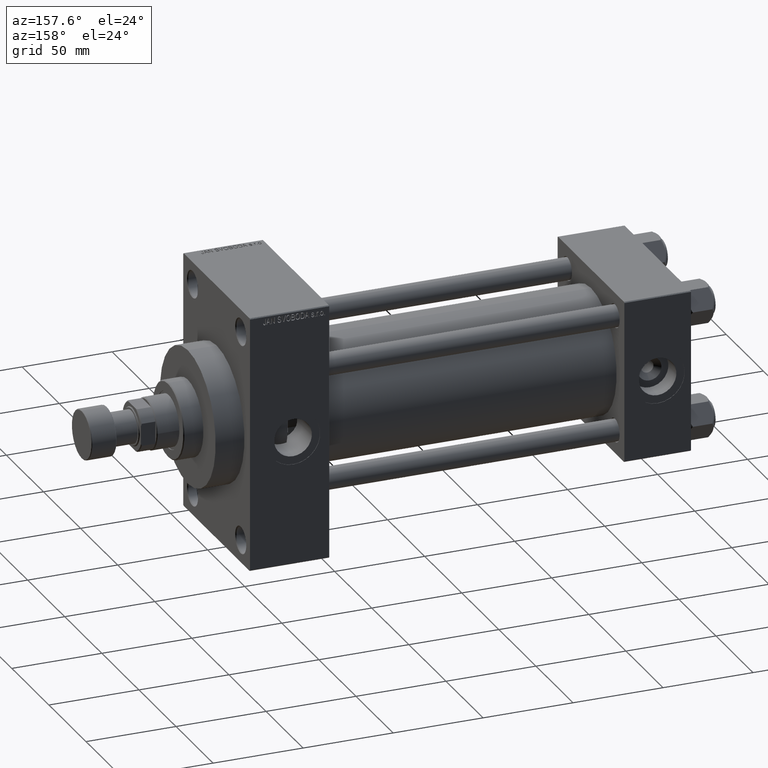
[diagram: clean part render]
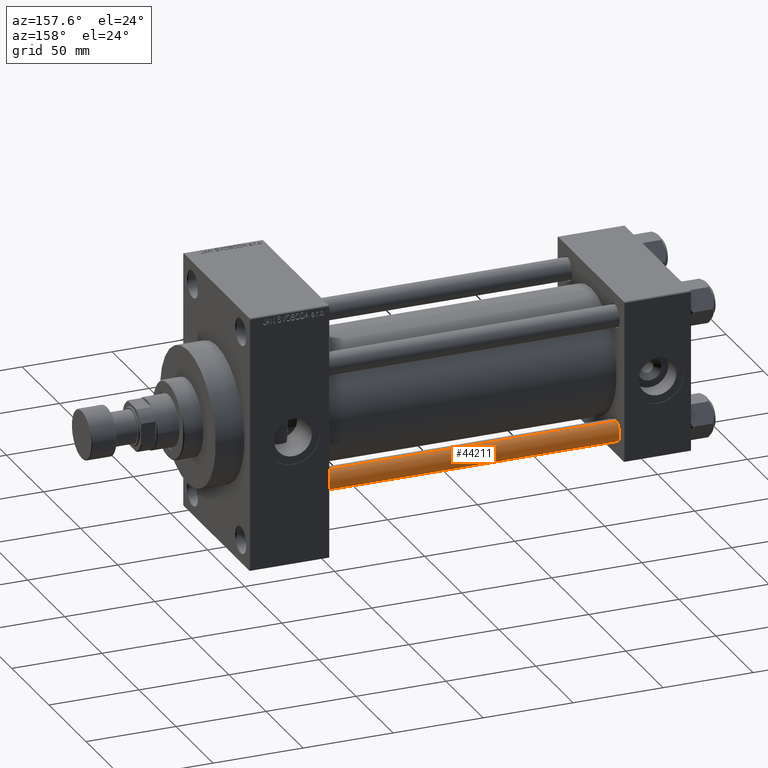
[diagram: same view with one face highlighted and labeled with its STEP entity id]
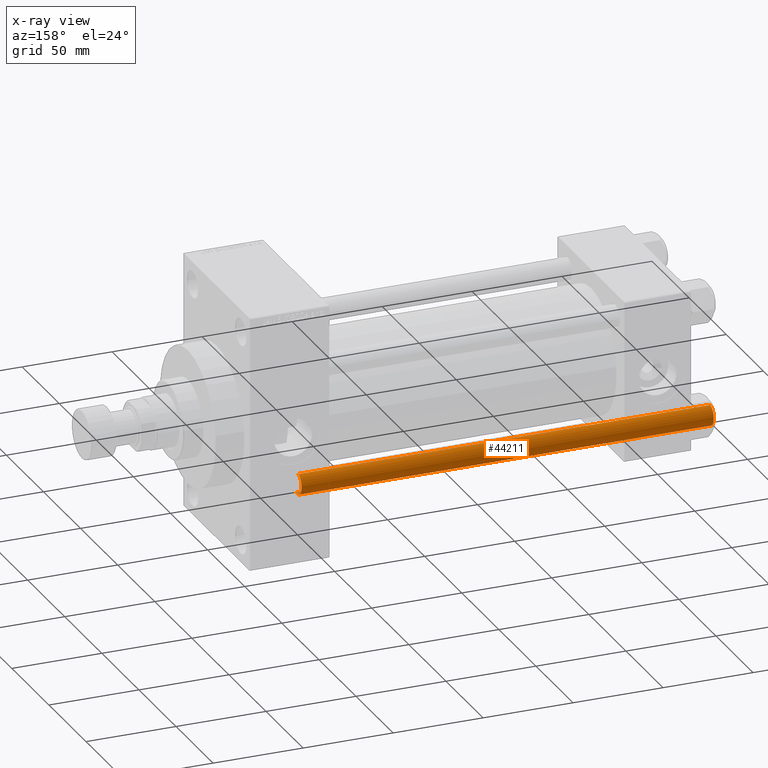
[diagram: x-ray of the same camera — body ghosted, the highlighted face saturated]
A machine part, auxiliary view. The second image highlights one B-rep face of the part: STEP entity #44211.
The next image is the same camera in x-ray: the body ghosted, the highlighted face saturated — about 0% of this face is hidden behind the body in this view.
In plain terms, the highlighted cylindrical surface (edge-blend (fillet) strip) has radius 6 mm, axis along (1, -0, 0).
Its self-contained STEP definition (entity closure, byte-faithful):
#169 = VERTEX_POINT ( 'NONE', #17254 ) ;
#385 = DIRECTION ( 'NONE',  ( -0.000000000000000000, -0.000000000000000000, -1.000000000000000000 ) ) ;
#3315 = EDGE_CURVE ( 'NONE', #169, #28275, #32250, .T. ) ;
#7644 = CARTESIAN_POINT ( 'NONE',  ( -6.000000000000000888, 0.000000000000000000, 229.5000000000000284 ) ) ;
#9070 = DIRECTION ( 'NONE',  ( 0.000000000000000000, 0.000000000000000000, -1.000000000000000000 ) ) ;
#10242 = VERTEX_POINT ( 'NONE', #7644 ) ;
#10280 = CARTESIAN_POINT ( 'NONE',  ( 6.000000000000000888, 7.347880794884120722E-16, 230.0000000000000000 ) ) ;
#10600 = ORIENTED_EDGE ( 'NONE', *, *, #3315, .T. ) ;
#12050 = CARTESIAN_POINT ( 'NONE',  ( 6.000000000000000888, 7.347880794884120722E-16, 0.4999999999999726885 ) ) ;
#12178 = CARTESIAN_POINT ( 'NONE',  ( 0.000000000000000000, 0.000000000000000000, 230.0000000000000000 ) ) ;
#13566 = DIRECTION ( 'NONE',  ( -0.000000000000000000, -0.000000000000000000, 1.000000000000000000 ) ) ;
#13725 = VECTOR ( 'NONE', #18686, 1000.000000000000000 ) ;
#17254 = CARTESIAN_POINT ( 'NONE',  ( 6.000000000000000888, 7.347880794884120722E-16, 229.5000000000000284 ) ) ;
#17452 = CIRCLE ( 'NONE', #35951, 6.000000000000000888 ) ;
#18686 = DIRECTION ( 'NONE',  ( -0.000000000000000000, -0.000000000000000000, -1.000000000000000000 ) ) ;
#18943 = CYLINDRICAL_SURFACE ( 'NONE', #26783, 6.000000000000000888 ) ;
#22908 = EDGE_LOOP ( 'NONE', ( #28686, #10600, #40749, #43465 ) ) ;
#25009 = DIRECTION ( 'NONE',  ( -0.000000000000000000, -0.000000000000000000, -1.000000000000000000 ) ) ;
#25296 = EDGE_CURVE ( 'NONE', #28275, #28525, #17452, .T. ) ;
#26783 = AXIS2_PLACEMENT_3D ( 'NONE', #12178, #385, #33674 ) ;
#27505 = AXIS2_PLACEMENT_3D ( 'NONE', #41178, #9070, #38047 ) ;
#27823 = CARTESIAN_POINT ( 'NONE',  ( 0.000000000000000000, 0.000000000000000000, 0.4999999999999726885 ) ) ;
#28275 = VERTEX_POINT ( 'NONE', #12050 ) ;
#28525 = VERTEX_POINT ( 'NONE', #45049 ) ;
#28686 = ORIENTED_EDGE ( 'NONE', *, *, #43601, .T. ) ;
#32250 = LINE ( 'NONE', #10280, #36959 ) ;
#33674 = DIRECTION ( 'NONE',  ( -1.000000000000000000, 0.000000000000000000, 0.000000000000000000 ) ) ;
#35951 = AXIS2_PLACEMENT_3D ( 'NONE', #27823, #13566, #39390 ) ;
#36959 = VECTOR ( 'NONE', #25009, 1000.000000000000000 ) ;
#38047 = DIRECTION ( 'NONE',  ( 1.000000000000000000, 0.000000000000000000, 0.000000000000000000 ) ) ;
#39390 = DIRECTION ( 'NONE',  ( 1.000000000000000000, 0.000000000000000000, 0.000000000000000000 ) ) ;
#40622 = CIRCLE ( 'NONE', #27505, 6.000000000000000888 ) ;
#40749 = ORIENTED_EDGE ( 'NONE', *, *, #25296, .T. ) ;
#41114 = CARTESIAN_POINT ( 'NONE',  ( -6.000000000000000888, 0.000000000000000000, 230.0000000000000000 ) ) ;
#41178 = CARTESIAN_POINT ( 'NONE',  ( 0.000000000000000000, 0.000000000000000000, 229.5000000000000284 ) ) ;
#42613 = EDGE_CURVE ( 'NONE', #10242, #28525, #44259, .T. ) ;
#43465 = ORIENTED_EDGE ( 'NONE', *, *, #42613, .F. ) ;
#43601 = EDGE_CURVE ( 'NONE', #10242, #169, #40622, .T. ) ;
#44211 = ADVANCED_FACE ( 'NONE', ( #45004 ), #18943, .T. ) ;
#44259 = LINE ( 'NONE', #41114, #13725 ) ;
#45004 = FACE_OUTER_BOUND ( 'NONE', #22908, .T. ) ;
#45049 = CARTESIAN_POINT ( 'NONE',  ( -6.000000000000000888, 0.000000000000000000, 0.4999999999999726885 ) ) ;